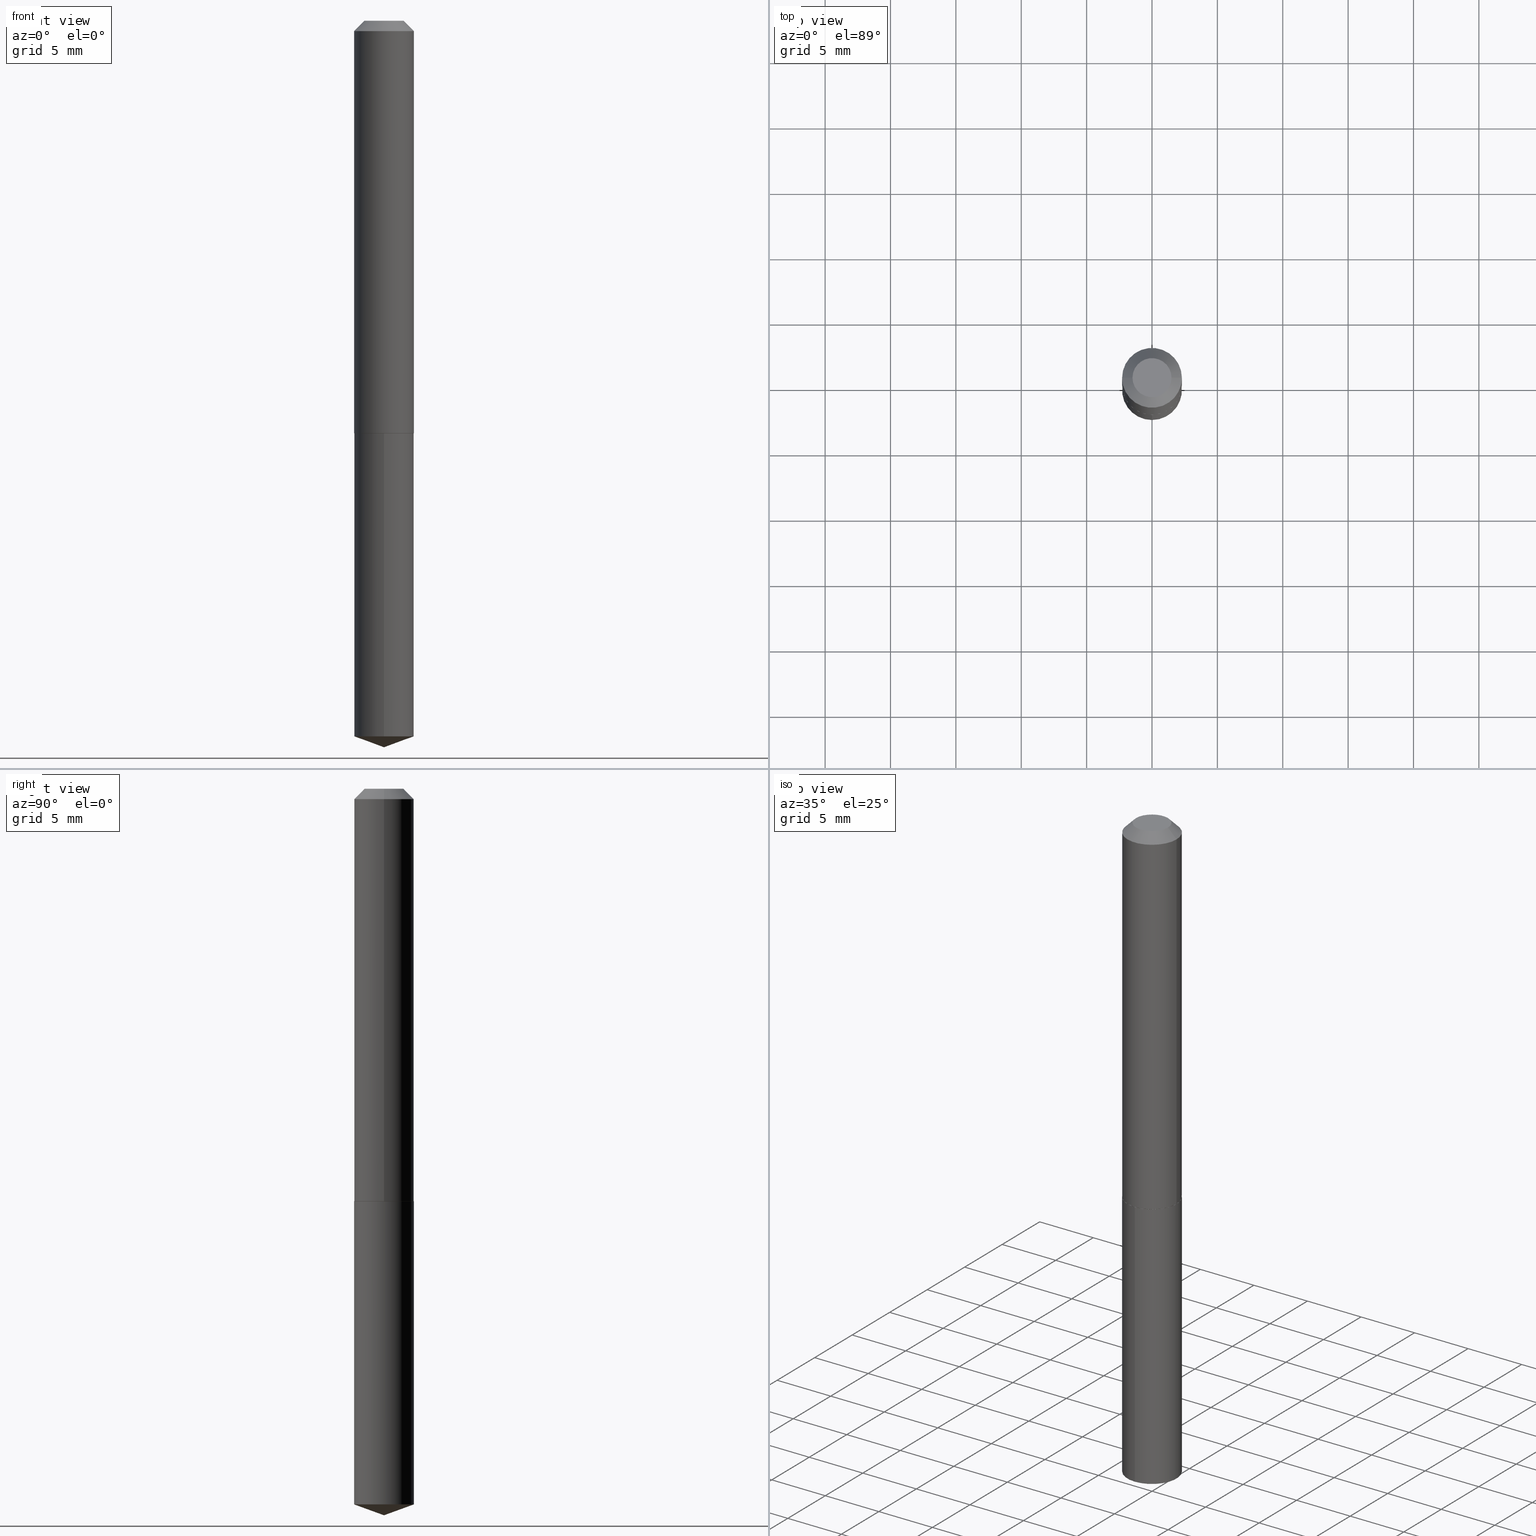
[diagram: canonical four-view strip — front | top / right | iso, engineering-drawing reading convention]
A machine part, canonical four-view strip (front | top / right | iso — engineering-drawing reading convention). The complete STEP part file that produces these views, byte-faithful:
ISO-10303-21;
HEADER;
FILE_DESCRIPTION (( 'STEP AP203' ),
    '1' );
FILE_NAME ('56224.STEP',
    '2024-04-22T21:06:40',
    ( '' ),
    ( '' ),
    'SwSTEP 2.0',
    'SolidWorks 2023',
    '' );
FILE_SCHEMA (( 'CONFIG_CONTROL_DESIGN' ));
ENDSEC;

DATA;
#1 = FACE_OUTER_BOUND ( 'NONE', #379, .T. ) ;
#2 = CARTESIAN_POINT ( 'NONE',  ( 5.269270799631211184E-29, -7.523365874737645144E-15, -2.154742678916042209 ) ) ;
#3 = DIRECTION ( 'NONE',  ( -6.982962677686265133E-15, -1.000000000000000000, 3.035386659626959132E-15 ) ) ;
#4 = AXIS2_PLACEMENT_3D ( 'NONE', #92, #35, #220 ) ;
#5 = ORIENTED_EDGE ( 'NONE', *, *, #9, .F. ) ;
#6 = MECHANICAL_CONTEXT ( 'NONE', #123, 'mechanical' ) ;
#7 = ORIENTED_EDGE ( 'NONE', *, *, #360, .T. ) ;
#8 = EDGE_CURVE ( 'NONE', #111, #316, #281, .T. ) ;
#9 = EDGE_CURVE ( 'NONE', #254, #341, #78, .T. ) ;
#10 = VECTOR ( 'NONE', #15, 39.37007874015748143 ) ;
#11 = EDGE_LOOP ( 'NONE', ( #158, #30, #279, #344 ) ) ;
#12 = ORIENTED_EDGE ( 'NONE', *, *, #59, .T. ) ;
#13 = DATE_AND_TIME ( #228, #239 ) ;
#14 = EDGE_LOOP ( 'NONE', ( #262, #371, #256, #71 ) ) ;
#15 = DIRECTION ( 'NONE',  ( -2.445375402296307705E-29, 3.491615098528167601E-15, 1.000000000000000000 ) ) ;
#16 = CIRCLE ( 'NONE', #128, 0.08999999999999999667 ) ;
#17 = DIRECTION ( 'NONE',  ( -2.445375402296307705E-29, 3.491615098528167601E-15, 1.000000000000000000 ) ) ;
#18 = DIRECTION ( 'NONE',  ( 1.000000000000000000, -6.982962677686263555E-15, 0.000000000000000000 ) ) ;
#19 = LINE ( 'NONE', #24, #380 ) ;
#20 = AXIS2_PLACEMENT_3D ( 'NONE', #271, #367, #3 ) ;
#21 = AXIS2_PLACEMENT_3D ( 'NONE', #331, #301, #161 ) ;
#22 = DIRECTION ( 'NONE',  ( -2.445468806185136597E-29, 3.491481338843145583E-15, 1.000000000000000000 ) ) ;
#23 = APPROVAL ( #282, 'UNSPECIFIED' ) ;
#24 = CARTESIAN_POINT ( 'NONE',  ( -0.09000000000000006606, 6.394884621840906367E-16, -4.427041581229418623E-30 ) ) ;
#25 = PRODUCT ( '56224', '56224', '', ( #6 ) ) ;
#26 = CARTESIAN_POINT ( 'NONE',  ( -0.09000000000000013545, -3.696931360659096890E-15, -1.242000000000000215 ) ) ;
#27 = AXIS2_PLACEMENT_3D ( 'NONE', #352, #323, #153 ) ;
#28 = CC_DESIGN_APPROVAL ( #168, ( #237 ) ) ;
#29 = CYLINDRICAL_SURFACE ( 'NONE', #44, 0.09000000000000006606 ) ;
#30 = ORIENTED_EDGE ( 'NONE', *, *, #368, .T. ) ;
#31 = ADVANCED_FACE ( 'NONE', ( #337 ), #266, .T. ) ;
#32 = CARTESIAN_POINT ( 'NONE',  ( 3.038494991685032647E-29, -4.338165563512609129E-15, -1.242500000000000160 ) ) ;
#33 = ORIENTED_EDGE ( 'NONE', *, *, #80, .T. ) ;
#34 = EDGE_CURVE ( 'NONE', #200, #142, #222, .T. ) ;
#35 = DIRECTION ( 'NONE',  ( -2.445375402296307705E-29, 3.491615098528167601E-15, 1.000000000000000000 ) ) ;
#36 = CIRCLE ( 'NONE', #311, 0.08999999999999999667 ) ;
#37 = CARTESIAN_POINT ( 'NONE',  ( 0.08950000000000044031, -4.963140723165535017E-15, -1.242500000000000826 ) ) ;
#38 = ORIENTED_EDGE ( 'NONE', *, *, #217, .T. ) ;
#39 = ADVANCED_FACE ( 'NONE', ( #86 ), #356, .F. ) ;
#40 = DATE_AND_TIME ( #252, #179 ) ;
#41 = EDGE_LOOP ( 'NONE', ( #131, #38, #232, #137 ) ) ;
#42 = VECTOR ( 'NONE', #265, 39.37007874015748854 ) ;
#43 = ORIENTED_EDGE ( 'NONE', *, *, #120, .F. ) ;
#44 = AXIS2_PLACEMENT_3D ( 'NONE', #245, #250, #334 ) ;
#45 = SECURITY_CLASSIFICATION_LEVEL ( 'unclassified' ) ;
#46 = ORIENTED_EDGE ( 'NONE', *, *, #360, .F. ) ;
#47 = EDGE_CURVE ( 'NONE', #254, #111, #56, .T. ) ;
#48 = PERSON_AND_ORGANIZATION ( #73, #351 ) ;
#49 = EDGE_LOOP ( 'NONE', ( #260, #247, #68 ) ) ;
#50 = DIRECTION ( 'NONE',  ( -6.982962677686265133E-15, -1.000000000000000000, 3.035386659626959132E-15 ) ) ;
#51 = CLOSED_SHELL ( 'NONE', ( #53, #205, #365, #210, #227 ) ) ;
#52 = DIRECTION ( 'NONE',  ( 2.445468806185136597E-29, -3.491481338843145583E-15, -1.000000000000000000 ) ) ;
#53 = ADVANCED_FACE ( 'NONE', ( #177 ), #206, .T. ) ;
#54 = DIRECTION ( 'NONE',  ( -2.445468806185136597E-29, 3.491481338843145583E-15, 1.000000000000000000 ) ) ;
#55 = CARTESIAN_POINT ( 'NONE',  ( -0.05874999999999999667, 4.648034532334915954E-16, -1.224646799177953522E-19 ) ) ;
#56 = CIRCLE ( 'NONE', #363, 0.08999999999999999667 ) ;
#57 = CC_DESIGN_DATE_AND_TIME_ASSIGNMENT ( #13, #346, ( #272 ) ) ;
#58 = FACE_OUTER_BOUND ( 'NONE', #93, .T. ) ;
#59 = EDGE_CURVE ( 'NONE', #286, #197, #87, .T. ) ;
#60 = CARTESIAN_POINT ( 'NONE',  ( -6.284666409917110122E-16, -0.09000000000000749067, -2.154742678916041765 ) ) ;
#61 = LINE ( 'NONE', #188, #358 ) ;
#62 = CONICAL_SURFACE ( 'NONE', #27, 0.09000000000000013545, 0.7853981633966971021 ) ;
#63 = AXIS2_PLACEMENT_3D ( 'NONE', #121, #243, #157 ) ;
#64 = CARTESIAN_POINT ( 'NONE',  ( -0.09000000000000013545, -3.696931360659096890E-15, -1.242000000000000215 ) ) ;
#65 = CC_DESIGN_PERSON_AND_ORGANIZATION_ASSIGNMENT ( #173, #285, ( #272 ) ) ;
#66 = DIRECTION ( 'NONE',  ( -2.445468806185136597E-29, 3.491481338843145583E-15, 1.000000000000000000 ) ) ;
#67 = DIRECTION ( 'NONE',  ( -2.445375402296307705E-29, 3.491615098528167601E-15, 1.000000000000000000 ) ) ;
#68 = ORIENTED_EDGE ( 'NONE', *, *, #317, .F. ) ;
#69 = CC_DESIGN_APPROVAL ( #23, ( #195 ) ) ;
#70 = CARTESIAN_POINT ( 'NONE',  ( 3.037272257281940407E-29, -4.336419822843187625E-15, -1.242000000000000215 ) ) ;
#71 = ORIENTED_EDGE ( 'NONE', *, *, #342, .F. ) ;
#72 = APPROVAL_STATUS ( 'not_yet_approved' ) ;
#73 = PERSON ( 'UNSPECIFIED', 'UNSPECIFIED', 'UNSPECIFIED', ('UNSPECIFIED'), ('UNSPECIFIED'), ('UNSPECIFIED') ) ;
#74 = ORIENTED_EDGE ( 'NONE', *, *, #47, .F. ) ;
#75 = EDGE_LOOP ( 'NONE', ( #43, #382, #74 ) ) ;
#76 = ADVANCED_FACE ( 'NONE', ( #58 ), #244, .T. ) ;
#77 = PERSON_AND_ORGANIZATION ( #73, #351 ) ;
#78 = LINE ( 'NONE', #288, #10 ) ;
#79 = DIRECTION ( 'NONE',  ( -1.000000000000000000, 6.982962677686265922E-15, -4.876176775795935793E-29 ) ) ;
#80 = EDGE_CURVE ( 'NONE', #316, #341, #330, .T. ) ;
#81 = DIRECTION ( 'NONE',  ( -2.445375402296307705E-29, 3.491615098528167601E-15, 1.000000000000000000 ) ) ;
#82 = LOCAL_TIME ( 17, 6, 40.00000000000000000, #372 ) ;
#83 = DIRECTION ( 'NONE',  ( -6.982962677686265133E-15, -1.000000000000000000, 3.035386659626959132E-15 ) ) ;
#84 = COORDINATED_UNIVERSAL_TIME_OFFSET ( 5, 0, .BEHIND. ) ;
#85 = DIRECTION ( 'NONE',  ( 2.438088387897960049E-29, -3.491481338843145188E-15, -1.000000000000000000 ) ) ;
#86 = FACE_OUTER_BOUND ( 'NONE', #277, .T. ) ;
#87 = CIRCLE ( 'NONE', #135, 0.09000000000000013545 ) ;
#88 = APPROVAL_PERSON_ORGANIZATION ( #306, #168, #136 ) ;
#89 = DIRECTION ( 'NONE',  ( 1.000000000000000000, -6.982962677686266711E-15, 0.000000000000000000 ) ) ;
#90 = PLANE ( 'NONE',  #94 ) ;
#91 = ORIENTED_EDGE ( 'NONE', *, *, #151, .F. ) ;
#92 = CARTESIAN_POINT ( 'NONE',  ( -9.092524739079486251E-28, 1.298274195277549427E-13, 37.18257874015748143 ) ) ;
#93 = EDGE_LOOP ( 'NONE', ( #46, #175, #258, #347 ) ) ;
#94 = AXIS2_PLACEMENT_3D ( 'NONE', #362, #219, #328 ) ;
#95 = DIRECTION ( 'NONE',  ( -6.982962677686265133E-15, -1.000000000000000000, 3.035386659626959132E-15 ) ) ;
#96 = FACE_OUTER_BOUND ( 'NONE', #229, .T. ) ;
#97 = CC_DESIGN_PERSON_AND_ORGANIZATION_ASSIGNMENT ( #48, #132, ( #25 ) ) ;
#98 = DIRECTION ( 'NONE',  ( 1.000000000000000000, 0.000000000000000000, 0.000000000000000000 ) ) ;
#99 = EDGE_CURVE ( 'NONE', #200, #134, #292, .T. ) ;
#100 = VECTOR ( 'NONE', #236, 39.37007874015748143 ) ;
#101 = COORDINATED_UNIVERSAL_TIME_OFFSET ( 5, 0, .BEHIND. ) ;
#102 = APPROVAL_PERSON_ORGANIZATION ( #77, #130, #287 ) ;
#103 = ORIENTED_EDGE ( 'NONE', *, *, #178, .F. ) ;
#104 = DIRECTION ( 'NONE',  ( -6.982962677686265133E-15, -1.000000000000000000, 3.035386659626959132E-15 ) ) ;
#105 = VERTEX_POINT ( 'NONE', #112 ) ;
#106 = PERSON_AND_ORGANIZATION ( #73, #351 ) ;
#107 = VERTEX_POINT ( 'NONE', #263 ) ;
#108 = EDGE_CURVE ( 'NONE', #107, #111, #114, .T. ) ;
#109 = PERSON_AND_ORGANIZATION_ROLE ( 'creator' ) ;
#110 = AXIS2_PLACEMENT_3D ( 'NONE', #270, #81, #83 ) ;
#111 = VERTEX_POINT ( 'NONE', #349 ) ;
#112 = CARTESIAN_POINT ( 'NONE',  ( -0.08950000000000044031, -3.699580587833207302E-15, -1.242500000000000826 ) ) ;
#113 = EDGE_CURVE ( 'NONE', #197, #286, #122, .T. ) ;
#114 = LINE ( 'NONE', #116, #100 ) ;
#115 = MANIFOLD_SOLID_BREP ( 'Body-Move/Copy2[2]', #184 ) ;
#116 = CARTESIAN_POINT ( 'NONE',  ( 5.349492836505911739E-29, -7.637575635213086858E-15, -2.187500000000000000 ) ) ;
#117 = LOCAL_TIME ( 17, 6, 40.00000000000000000, #280 ) ;
#118 = CARTESIAN_POINT ( 'NONE',  ( 3.038494991685032647E-29, -4.338165563512609129E-15, -1.242500000000000160 ) ) ;
#119 = DIRECTION ( 'NONE',  ( -2.445468806185136597E-29, 3.491481338843145583E-15, 1.000000000000000000 ) ) ;
#120 = EDGE_CURVE ( 'NONE', #107, #254, #147, .T. ) ;
#121 = CARTESIAN_POINT ( 'NONE',  ( 7.642090019328602662E-31, -1.091087918388490267E-16, -0.03125000000000020817 ) ) ;
#122 = CIRCLE ( 'NONE', #169, 0.09000000000000013545 ) ;
#123 = APPLICATION_CONTEXT ( 'configuration controlled 3d designs of mechanical parts and assemblies' ) ;
#124 = DIRECTION ( 'NONE',  ( -0.7071067811860163310, 7.493145998868434073E-15, 0.7071067811870787034 ) ) ;
#125 = ADVANCED_FACE ( 'NONE', ( #240 ), #62, .T. ) ;
#126 = FACE_OUTER_BOUND ( 'NONE', #14, .T. ) ;
#127 = DIRECTION ( 'NONE',  ( -2.445375402296307705E-29, 3.491615098528167601E-15, 1.000000000000000000 ) ) ;
#128 = AXIS2_PLACEMENT_3D ( 'NONE', #2, #127, #95 ) ;
#129 = CARTESIAN_POINT ( 'NONE',  ( 3.038494991685032647E-29, -4.338165563512609129E-15, -1.242500000000000160 ) ) ;
#130 = APPROVAL ( #291, 'UNSPECIFIED' ) ;
#131 = ORIENTED_EDGE ( 'NONE', *, *, #284, .T. ) ;
#132 = PERSON_AND_ORGANIZATION_ROLE ( 'design_owner' ) ;
#133 = CALENDAR_DATE ( 2024, 22, 4 ) ;
#134 = VERTEX_POINT ( 'NONE', #296 ) ;
#135 = AXIS2_PLACEMENT_3D ( 'NONE', #348, #320, #214 ) ;
#136 = APPROVAL_ROLE ( '' ) ;
#137 = ORIENTED_EDGE ( 'NONE', *, *, #198, .F. ) ;
#138 = CC_DESIGN_PERSON_AND_ORGANIZATION_ASSIGNMENT ( #166, #370, ( #237 ) ) ;
#139 = DIRECTION ( 'NONE',  ( 0.000000000000000000, 0.000000000000000000, 1.000000000000000000 ) ) ;
#140 = DIRECTION ( 'NONE',  ( -2.445375402296307705E-29, 3.491615098528167601E-15, 1.000000000000000000 ) ) ;
#141 =( NAMED_UNIT ( * ) PLANE_ANGLE_UNIT ( ) SI_UNIT ( $, .RADIAN. ) );
#142 = VERTEX_POINT ( 'NONE', #211 ) ;
#143 = EDGE_LOOP ( 'NONE', ( #305, #283 ) ) ;
#144 = AXIS2_PLACEMENT_3D ( 'NONE', #364, #159, #89 ) ;
#145 = DIRECTION ( 'NONE',  ( 1.000000000000000000, -6.982962677686267499E-15, 4.876179797471253707E-29 ) ) ;
#146 = DATE_AND_TIME ( #353, #290 ) ;
#147 = LINE ( 'NONE', #387, #42 ) ;
#148 = CC_DESIGN_DATE_AND_TIME_ASSIGNMENT ( #171, #313, ( #237 ) ) ;
#149 = CARTESIAN_POINT ( 'NONE',  ( 7.642090019328602662E-31, -1.091087918388490267E-16, -0.03125000000000020817 ) ) ;
#150 = CIRCLE ( 'NONE', #21, 0.08950000000000044031 ) ;
#151 = EDGE_CURVE ( 'NONE', #142, #200, #155, .T. ) ;
#152 = DIRECTION ( 'NONE',  ( 1.000000000000000000, -6.982962677686263555E-15, 0.000000000000000000 ) ) ;
#153 = DIRECTION ( 'NONE',  ( 1.000000000000000000, -6.982962677686263555E-15, 0.000000000000000000 ) ) ;
#154 = FACE_OUTER_BOUND ( 'NONE', #143, .T. ) ;
#155 = CIRCLE ( 'NONE', #215, 0.05874999999999999667 ) ;
#156 = AXIS2_PLACEMENT_3D ( 'NONE', #259, #139, #98 ) ;
#157 = DIRECTION ( 'NONE',  ( 1.000000000000000000, -6.982962677686266711E-15, 0.000000000000000000 ) ) ;
#158 = ORIENTED_EDGE ( 'NONE', *, *, #217, .F. ) ;
#159 = DIRECTION ( 'NONE',  ( -2.445468806185136597E-29, 3.491481338843145583E-15, 1.000000000000000000 ) ) ;
#160 = CC_DESIGN_PERSON_AND_ORGANIZATION_ASSIGNMENT ( #106, #109, ( #195 ) ) ;
#161 = DIRECTION ( 'NONE',  ( 1.000000000000000000, -6.982962677686266711E-15, 0.000000000000000000 ) ) ;
#162 = AXIS2_PLACEMENT_3D ( 'NONE', #118, #17, #50 ) ;
#163 = CIRCLE ( 'NONE', #144, 0.08950000000000044031 ) ;
#164 = FACE_OUTER_BOUND ( 'NONE', #335, .T. ) ;
#165 = EDGE_LOOP ( 'NONE', ( #373, #310, #204, #5 ) ) ;
#166 = PERSON_AND_ORGANIZATION ( #73, #351 ) ;
#167 = ORIENTED_EDGE ( 'NONE', *, *, #151, .T. ) ;
#168 = APPROVAL ( #72, 'UNSPECIFIED' ) ;
#169 = AXIS2_PLACEMENT_3D ( 'NONE', #208, #293, #18 ) ;
#170 = AXIS2_PLACEMENT_3D ( 'NONE', #224, #66, #193 ) ;
#171 = DATE_AND_TIME ( #255, #117 ) ;
#172 = ORIENTED_EDGE ( 'NONE', *, *, #34, .T. ) ;
#173 = PERSON_AND_ORGANIZATION ( #73, #351 ) ;
#174 = ORIENTED_EDGE ( 'NONE', *, *, #80, .F. ) ;
#175 = ORIENTED_EDGE ( 'NONE', *, *, #34, .F. ) ;
#176 = VECTOR ( 'NONE', #140, 39.37007874015748143 ) ;
#177 = FACE_OUTER_BOUND ( 'NONE', #165, .T. ) ;
#178 = EDGE_CURVE ( 'NONE', #286, #134, #19, .T. ) ;
#179 = LOCAL_TIME ( 17, 6, 40.00000000000000000, #315 ) ;
#180 = DIRECTION ( 'NONE',  ( -6.982962677686265133E-15, -1.000000000000000000, 3.035386659626959132E-15 ) ) ;
#181 = DIRECTION ( 'NONE',  ( 1.000000000000000000, -6.982962677686267499E-15, 4.876179797471253707E-29 ) ) ;
#182 = EDGE_CURVE ( 'NONE', #134, #314, #36, .T. ) ;
#183 = CARTESIAN_POINT ( 'NONE',  ( 2.994835545909338206E-48, -4.275831445896990567E-34, -1.224646799147357958E-19 ) ) ;
#184 = CLOSED_SHELL ( 'NONE', ( #329, #312, #125, #355, #31, #264, #76, #39 ) ) ;
#185 = CARTESIAN_POINT ( 'NONE',  ( -0.08999999999999999667, 5.193578491529149625E-16, -0.03125000000000020817 ) ) ;
#186 = CYLINDRICAL_SURFACE ( 'NONE', #170, 0.09000000000000006606 ) ;
#187 = DESIGN_CONTEXT ( 'detailed design', #378, 'design' ) ;
#188 = CARTESIAN_POINT ( 'NONE',  ( 0.08999999999999999667, -7.265536116382867874E-16, -0.03125000000000020817 ) ) ;
#189 = EDGE_LOOP ( 'NONE', ( #103, #12, #234, #339 ) ) ;
#190 = CIRCLE ( 'NONE', #63, 0.08999999999999999667 ) ;
#191 = CARTESIAN_POINT ( 'NONE',  ( -6.284666409917335934E-16, -0.09000000000000432654, -1.242499999999999938 ) ) ;
#192 = DIRECTION ( 'NONE',  ( -2.445468806185136877E-29, 3.491481338843145188E-15, 1.000000000000000000 ) ) ;
#193 = DIRECTION ( 'NONE',  ( 1.000000000000000000, -6.982962677686266711E-15, 4.876176775795935793E-29 ) ) ;
#194 = AXIS2_PLACEMENT_3D ( 'NONE', #183, #384, #145 ) ;
#195 = PRODUCT_DEFINITION_FORMATION_WITH_SPECIFIED_SOURCE ( 'ANY', '', #25, .NOT_KNOWN. ) ;
#196 = ORIENTED_EDGE ( 'NONE', *, *, #8, .F. ) ;
#197 = VERTEX_POINT ( 'NONE', #269 ) ;
#198 = EDGE_CURVE ( 'NONE', #302, #197, #386, .T. ) ;
#199 = APPROVAL_DATE_TIME ( #40, #168 ) ;
#200 = VERTEX_POINT ( 'NONE', #55 ) ;
#201 = VECTOR ( 'NONE', #124, 39.37007874015748143 ) ;
#202 = PERSON_AND_ORGANIZATION ( #73, #351 ) ;
#203 = ORIENTED_EDGE ( 'NONE', *, *, #9, .T. ) ;
#204 = ORIENTED_EDGE ( 'NONE', *, *, #383, .F. ) ;
#205 = ADVANCED_FACE ( 'NONE', ( #242 ), #289, .T. ) ;
#206 = CYLINDRICAL_SURFACE ( 'NONE', #110, 0.08999999999999999667 ) ;
#207 = APPROVAL_DATE_TIME ( #146, #130 ) ;
#208 = CARTESIAN_POINT ( 'NONE',  ( 3.037272257281940407E-29, -4.336419822843187625E-15, -1.242000000000000215 ) ) ;
#209 = DIMENSIONAL_EXPONENTS ( 1.000000000000000000, 0.000000000000000000, 0.000000000000000000, 0.000000000000000000, 0.000000000000000000, 0.000000000000000000, 0.000000000000000000 ) ;
#210 = ADVANCED_FACE ( 'NONE', ( #164 ), #276, .T. ) ;
#211 = CARTESIAN_POINT ( 'NONE',  ( 0.05874999999999999667, -5.648039345036820564E-16, -1.224646799113270924E-19 ) ) ;
#212 = SHAPE_DEFINITION_REPRESENTATION ( #273, #308 ) ;
#213 = DIRECTION ( 'NONE',  ( -0.7071067811865451302, 2.468850131082231817E-15, -0.7071067811865499042 ) ) ;
#214 = DIRECTION ( 'NONE',  ( 1.000000000000000000, -6.982962677686263555E-15, 0.000000000000000000 ) ) ;
#215 = AXIS2_PLACEMENT_3D ( 'NONE', #321, #54, #181 ) ;
#216 = CC_DESIGN_SECURITY_CLASSIFICATION ( #272, ( #195 ) ) ;
#217 = EDGE_CURVE ( 'NONE', #105, #286, #333, .T. ) ;
#218 = DIRECTION ( 'NONE',  ( 2.445468806185136597E-29, -3.491481338843145583E-15, -1.000000000000000000 ) ) ;
#219 = DIRECTION ( 'NONE',  ( -2.438088387897960049E-29, 3.491481338843145188E-15, 1.000000000000000000 ) ) ;
#220 = DIRECTION ( 'NONE',  ( -6.982962677686267499E-15, -1.000000000000000000, 3.475157955500694970E-15 ) ) ;
#221 = CC_DESIGN_PERSON_AND_ORGANIZATION_ASSIGNMENT ( #231, #343, ( #195 ) ) ;
#222 = CIRCLE ( 'NONE', #194, 0.05874999999999999667 ) ;
#223 = DIRECTION ( 'NONE',  ( -1.000000000000000000, 6.982962677686266711E-15, 0.000000000000000000 ) ) ;
#224 = CARTESIAN_POINT ( 'NONE',  ( 0.000000000000000000, 0.000000000000000000, 0.000000000000000000 ) ) ;
#225 = ORIENTED_EDGE ( 'NONE', *, *, #317, .T. ) ;
#226 = AXIS2_PLACEMENT_3D ( 'NONE', #246, #218, #223 ) ;
#227 = ADVANCED_FACE ( 'NONE', ( #96 ), #388, .F. ) ;
#228 = CALENDAR_DATE ( 2024, 22, 4 ) ;
#229 = EDGE_LOOP ( 'NONE', ( #307, #33 ) ) ;
#230 = CARTESIAN_POINT ( 'NONE',  ( 6.394884621841203175E-16, 0.08999999999999565292, -1.242500000000000382 ) ) ;
#231 = PERSON_AND_ORGANIZATION ( #73, #351 ) ;
#232 = ORIENTED_EDGE ( 'NONE', *, *, #113, .F. ) ;
#233 = AXIS2_PLACEMENT_3D ( 'NONE', #129, #369, #104 ) ;
#234 = ORIENTED_EDGE ( 'NONE', *, *, #342, .T. ) ;
#235 = DIRECTION ( 'NONE',  ( -2.445468806185136877E-29, 3.491481338843145188E-15, 1.000000000000000000 ) ) ;
#236 = DIRECTION ( 'NONE',  ( 6.676917655467975229E-15, 0.9396926207859106484, 0.3420201433256624401 ) ) ;
#237 = PRODUCT_DEFINITION ( 'UNKNOWN', '', #195, #187 ) ;
#238 = AXIS2_PLACEMENT_3D ( 'NONE', #385, #85, #79 ) ;
#239 = LOCAL_TIME ( 17, 6, 40.00000000000000000, #101 ) ;
#240 = FACE_OUTER_BOUND ( 'NONE', #41, .T. ) ;
#241 = CARTESIAN_POINT ( 'NONE',  ( 0.09000000000000013545, -4.964886463834952576E-15, -1.242000000000000215 ) ) ;
#242 = FACE_OUTER_BOUND ( 'NONE', #75, .T. ) ;
#243 = DIRECTION ( 'NONE',  ( -2.445468806185136597E-29, 3.491481338843145583E-15, 1.000000000000000000 ) ) ;
#244 = CONICAL_SURFACE ( 'NONE', #350, 0.08999999999999999667, 0.7853981633974449483 ) ;
#245 = CARTESIAN_POINT ( 'NONE',  ( 0.000000000000000000, 0.000000000000000000, 0.000000000000000000 ) ) ;
#246 = CARTESIAN_POINT ( 'NONE',  ( 7.642090019328602662E-31, -1.091087918388490267E-16, -0.03125000000000020817 ) ) ;
#247 = ORIENTED_EDGE ( 'NONE', *, *, #120, .T. ) ;
#248 = DIRECTION ( 'NONE',  ( 2.445375402296307425E-29, -3.491615098528167601E-15, -1.000000000000000000 ) ) ;
#249 =( GEOMETRIC_REPRESENTATION_CONTEXT ( 3 ) GLOBAL_UNCERTAINTY_ASSIGNED_CONTEXT ( ( #327 ) ) GLOBAL_UNIT_ASSIGNED_CONTEXT ( ( #336, #141, #253 ) ) REPRESENTATION_CONTEXT ( 'NONE', 'WORKASPACE' ) );
#250 = DIRECTION ( 'NONE',  ( -2.445468806185136597E-29, 3.491481338843145583E-15, 1.000000000000000000 ) ) ;
#251 = ORIENTED_EDGE ( 'NONE', *, *, #99, .F. ) ;
#252 = CALENDAR_DATE ( 2024, 22, 4 ) ;
#253 =( NAMED_UNIT ( * ) SI_UNIT ( $, .STERADIAN. ) SOLID_ANGLE_UNIT ( ) );
#254 = VERTEX_POINT ( 'NONE', #60 ) ;
#255 = CALENDAR_DATE ( 2024, 22, 4 ) ;
#256 = ORIENTED_EDGE ( 'NONE', *, *, #300, .F. ) ;
#257 = APPROVAL_ROLE ( '' ) ;
#258 = ORIENTED_EDGE ( 'NONE', *, *, #99, .T. ) ;
#259 = CARTESIAN_POINT ( 'NONE',  ( 0.000000000000000000, 0.000000000000000000, 0.000000000000000000 ) ) ;
#260 = ORIENTED_EDGE ( 'NONE', *, *, #108, .F. ) ;
#261 = VECTOR ( 'NONE', #354, 39.37007874015748143 ) ;
#262 = ORIENTED_EDGE ( 'NONE', *, *, #113, .T. ) ;
#263 = CARTESIAN_POINT ( 'NONE',  ( 5.349258692523174155E-29, -7.637908028030366429E-15, -2.187500000000000000 ) ) ;
#264 = ADVANCED_FACE ( 'NONE', ( #304 ), #29, .T. ) ;
#265 = DIRECTION ( 'NONE',  ( -6.561838499445207162E-15, -0.9396926207859082059, 0.3420201433256689350 ) ) ;
#266 = CONICAL_SURFACE ( 'NONE', #357, 0.09000000000000013545, 0.7853981633966971021 ) ;
#267 = VECTOR ( 'NONE', #192, 39.37007874015748143 ) ;
#268 = DIRECTION ( 'NONE',  ( 1.000000000000000000, -6.982962677686266711E-15, 0.000000000000000000 ) ) ;
#269 = CARTESIAN_POINT ( 'NONE',  ( 0.09000000000000013545, -4.964886463834952576E-15, -1.242000000000000215 ) ) ;
#270 = CARTESIAN_POINT ( 'NONE',  ( 3.038494991685032647E-29, -4.338165563512609129E-15, -1.242500000000000160 ) ) ;
#271 = CARTESIAN_POINT ( 'NONE',  ( 3.038494991685032647E-29, -4.338165563512609129E-15, -1.242500000000000160 ) ) ;
#272 = SECURITY_CLASSIFICATION ( '', '', #45 ) ;
#273 = PRODUCT_DEFINITION_SHAPE ( 'NONE', 'NONE',  #237 ) ;
#274 = CARTESIAN_POINT ( 'NONE',  ( 0.08999999999999999667, -7.375754328306130652E-16, -0.03125000000000020817 ) ) ;
#275 = DIRECTION ( 'NONE',  ( 6.982962677686265922E-15, 1.000000000000000000, -3.491615098528167601E-15 ) ) ;
#276 = CYLINDRICAL_SURFACE ( 'NONE', #20, 0.08999999999999999667 ) ;
#277 = EDGE_LOOP ( 'NONE', ( #172, #167 ) ) ;
#278 =( LENGTH_UNIT ( ) NAMED_UNIT ( * ) SI_UNIT ( $, .METRE. ) );
#279 = ORIENTED_EDGE ( 'NONE', *, *, #198, .T. ) ;
#280 = COORDINATED_UNIVERSAL_TIME_OFFSET ( 5, 0, .BEHIND. ) ;
#281 = LINE ( 'NONE', #230, #176 ) ;
#282 = APPROVAL_STATUS ( 'not_yet_approved' ) ;
#283 = ORIENTED_EDGE ( 'NONE', *, *, #368, .F. ) ;
#284 = EDGE_CURVE ( 'NONE', #302, #105, #163, .T. ) ;
#285 = PERSON_AND_ORGANIZATION_ROLE ( 'classification_officer' ) ;
#286 = VERTEX_POINT ( 'NONE', #64 ) ;
#287 = APPROVAL_ROLE ( '' ) ;
#288 = CARTESIAN_POINT ( 'NONE',  ( -6.284666409917335934E-16, -0.09000000000000432654, -1.242499999999999938 ) ) ;
#289 = CONICAL_SURFACE ( 'NONE', #299, 108.1684023407342465, 1.221730476396033938 ) ;
#290 = LOCAL_TIME ( 17, 6, 40.00000000000000000, #84 ) ;
#291 = APPROVAL_STATUS ( 'not_yet_approved' ) ;
#292 = LINE ( 'NONE', #185, #389 ) ;
#293 = DIRECTION ( 'NONE',  ( -2.445468806185136597E-29, 3.491481338843145583E-15, 1.000000000000000000 ) ) ;
#294 = DIRECTION ( 'NONE',  ( -2.445375402296307705E-29, 3.491615098528167601E-15, 1.000000000000000000 ) ) ;
#295 = CARTESIAN_POINT ( 'NONE',  ( 5.269270799631211184E-29, -7.523365874737645144E-15, -2.154742678916042209 ) ) ;
#296 = CARTESIAN_POINT ( 'NONE',  ( -0.08999999999999999667, -1.583275845156927233E-15, -0.03125000000000020817 ) ) ;
#297 = LINE ( 'NONE', #326, #267 ) ;
#298 = FACE_OUTER_BOUND ( 'NONE', #49, .T. ) ;
#299 = AXIS2_PLACEMENT_3D ( 'NONE', #361, #67, #390 ) ;
#300 = EDGE_CURVE ( 'NONE', #314, #134, #190, .T. ) ;
#301 = DIRECTION ( 'NONE',  ( -2.445468806185136597E-29, 3.491481338843145583E-15, 1.000000000000000000 ) ) ;
#302 = VERTEX_POINT ( 'NONE', #37 ) ;
#303 = DIRECTION ( 'NONE',  ( 0.7071067811865451302, -7.319954787623248157E-15, -0.7071067811865499042 ) ) ;
#304 = FACE_OUTER_BOUND ( 'NONE', #189, .T. ) ;
#305 = ORIENTED_EDGE ( 'NONE', *, *, #284, .F. ) ;
#306 = PERSON_AND_ORGANIZATION ( #73, #351 ) ;
#307 = ORIENTED_EDGE ( 'NONE', *, *, #383, .T. ) ;
#308 = ADVANCED_BREP_SHAPE_REPRESENTATION ( '56224', ( #374, #115, #156 ), #249 ) ;
#309 = APPLICATION_PROTOCOL_DEFINITION ( 'international standard', 'config_control_design', 1994, #378 ) ;
#310 = ORIENTED_EDGE ( 'NONE', *, *, #8, .T. ) ;
#311 = AXIS2_PLACEMENT_3D ( 'NONE', #149, #22, #268 ) ;
#312 = ADVANCED_FACE ( 'NONE', ( #126 ), #186, .T. ) ;
#313 = DATE_TIME_ROLE ( 'creation_date' ) ;
#314 = VERTEX_POINT ( 'NONE', #274 ) ;
#315 = COORDINATED_UNIVERSAL_TIME_OFFSET ( 5, 0, .BEHIND. ) ;
#316 = VERTEX_POINT ( 'NONE', #359 ) ;
#317 = EDGE_CURVE ( 'NONE', #111, #254, #16, .T. ) ;
#318 = CARTESIAN_POINT ( 'NONE',  ( 7.642090019328602662E-31, -1.091087918388490267E-16, -0.03125000000000020817 ) ) ;
#319 = APPROVAL_PERSON_ORGANIZATION ( #202, #23, #257 ) ;
#320 = DIRECTION ( 'NONE',  ( -2.445468806185136597E-29, 3.491481338843145583E-15, 1.000000000000000000 ) ) ;
#321 = CARTESIAN_POINT ( 'NONE',  ( 2.994835545909338206E-48, -4.275831445896990567E-34, -1.224646799147357958E-19 ) ) ;
#322 = PRODUCT_RELATED_PRODUCT_CATEGORY ( 'detail', '', ( #25 ) ) ;
#323 = DIRECTION ( 'NONE',  ( -2.445468806185136597E-29, 3.491481338843145583E-15, 1.000000000000000000 ) ) ;
#324 = AXIS2_PLACEMENT_3D ( 'NONE', #32, #248, #275 ) ;
#325 = DIRECTION ( 'NONE',  ( -1.000000000000000000, 6.982962677686266711E-15, 0.000000000000000000 ) ) ;
#326 = CARTESIAN_POINT ( 'NONE',  ( 0.09000000000000006606, -6.284666409917644575E-16, 4.388559098216345437E-30 ) ) ;
#327 = UNCERTAINTY_MEASURE_WITH_UNIT (LENGTH_MEASURE( 1.000000000000000082E-05 ), #336, 'distance_accuracy_value', 'NONE');
#328 = DIRECTION ( 'NONE',  ( 1.000000000000000000, -6.982962677686265922E-15, 4.876176775795935793E-29 ) ) ;
#329 = ADVANCED_FACE ( 'NONE', ( #1 ), #332, .T. ) ;
#330 = CIRCLE ( 'NONE', #162, 0.08999999999999999667 ) ;
#331 = CARTESIAN_POINT ( 'NONE',  ( 3.038494991685034329E-29, -4.338165563512611496E-15, -1.242500000000000826 ) ) ;
#332 = CONICAL_SURFACE ( 'NONE', #226, 0.08999999999999999667, 0.7853981633974449483 ) ;
#333 = LINE ( 'NONE', #26, #201 ) ;
#334 = DIRECTION ( 'NONE',  ( 1.000000000000000000, -6.982962677686266711E-15, 4.876176775795935793E-29 ) ) ;
#335 = EDGE_LOOP ( 'NONE', ( #196, #225, #203, #174 ) ) ;
#336 =( CONVERSION_BASED_UNIT ( 'INCH', #340 ) LENGTH_UNIT ( ) NAMED_UNIT ( #209 ) );
#337 = FACE_OUTER_BOUND ( 'NONE', #11, .T. ) ;
#338 = APPROVAL_DATE_TIME ( #375, #23 ) ;
#339 = ORIENTED_EDGE ( 'NONE', *, *, #182, .F. ) ;
#340 = LENGTH_MEASURE_WITH_UNIT ( LENGTH_MEASURE( 0.02539999999999999897 ), #278 );
#341 = VERTEX_POINT ( 'NONE', #191 ) ;
#342 = EDGE_CURVE ( 'NONE', #197, #314, #297, .T. ) ;
#343 = PERSON_AND_ORGANIZATION_ROLE ( 'design_supplier' ) ;
#344 = ORIENTED_EDGE ( 'NONE', *, *, #59, .F. ) ;
#345 = CC_DESIGN_APPROVAL ( #130, ( #272 ) ) ;
#346 = DATE_TIME_ROLE ( 'classification_date' ) ;
#347 = ORIENTED_EDGE ( 'NONE', *, *, #182, .T. ) ;
#348 = CARTESIAN_POINT ( 'NONE',  ( 3.037272257281940407E-29, -4.336419822843187625E-15, -1.242000000000000215 ) ) ;
#349 = CARTESIAN_POINT ( 'NONE',  ( 6.394884621841425043E-16, 0.08999999999999243327, -2.154742678916042653 ) ) ;
#350 = AXIS2_PLACEMENT_3D ( 'NONE', #318, #52, #325 ) ;
#351 = ORGANIZATION ( 'UNSPECIFIED', 'UNSPECIFIED', '' ) ;
#352 = CARTESIAN_POINT ( 'NONE',  ( 3.037272257281940407E-29, -4.336419822843187625E-15, -1.242000000000000215 ) ) ;
#353 = CALENDAR_DATE ( 2024, 22, 4 ) ;
#354 = DIRECTION ( 'NONE',  ( 0.7071067811860163310, -2.468850131076692830E-15, 0.7071067811870787034 ) ) ;
#355 = ADVANCED_FACE ( 'NONE', ( #154 ), #90, .F. ) ;
#356 = PLANE ( 'NONE',  #238 ) ;
#357 = AXIS2_PLACEMENT_3D ( 'NONE', #70, #119, #152 ) ;
#358 = VECTOR ( 'NONE', #303, 39.37007874015748143 ) ;
#359 = CARTESIAN_POINT ( 'NONE',  ( 6.394884621841428987E-16, 0.08999999999999565292, -1.242500000000000382 ) ) ;
#360 = EDGE_CURVE ( 'NONE', #142, #314, #61, .T. ) ;
#361 = CARTESIAN_POINT ( 'NONE',  ( -9.092524739079486251E-28, 1.298274195277549427E-13, 37.18257874015748143 ) ) ;
#362 = CARTESIAN_POINT ( 'NONE',  ( 3.901801557374897220E-30, -8.130703141309081926E-15, -1.242500000000000382 ) ) ;
#363 = AXIS2_PLACEMENT_3D ( 'NONE', #295, #294, #180 ) ;
#364 = CARTESIAN_POINT ( 'NONE',  ( 3.038494991685034329E-29, -4.338165563512611496E-15, -1.242500000000000826 ) ) ;
#365 = ADVANCED_FACE ( 'NONE', ( #298 ), #366, .T. ) ;
#366 = CONICAL_SURFACE ( 'NONE', #4, 108.1684023407342465, 1.221730476396033938 ) ;
#367 = DIRECTION ( 'NONE',  ( -2.445375402296307705E-29, 3.491615098528167601E-15, 1.000000000000000000 ) ) ;
#368 = EDGE_CURVE ( 'NONE', #105, #302, #150, .T. ) ;
#369 = DIRECTION ( 'NONE',  ( -2.445375402296307705E-29, 3.491615098528167601E-15, 1.000000000000000000 ) ) ;
#370 = PERSON_AND_ORGANIZATION_ROLE ( 'creator' ) ;
#371 = ORIENTED_EDGE ( 'NONE', *, *, #178, .T. ) ;
#372 = COORDINATED_UNIVERSAL_TIME_OFFSET ( 5, 0, .BEHIND. ) ;
#373 = ORIENTED_EDGE ( 'NONE', *, *, #47, .T. ) ;
#374 = MANIFOLD_SOLID_BREP ( 'Body-Move/Copy2[1]', #51 ) ;
#375 = DATE_AND_TIME ( #133, #82 ) ;
#376 = ORIENTED_EDGE ( 'NONE', *, *, #300, .T. ) ;
#377 = APPLICATION_PROTOCOL_DEFINITION ( 'international standard', 'config_control_design', 1994, #123 ) ;
#378 = APPLICATION_CONTEXT ( 'configuration controlled 3d designs of mechanical parts and assemblies' ) ;
#379 = EDGE_LOOP ( 'NONE', ( #91, #7, #376, #251 ) ) ;
#380 = VECTOR ( 'NONE', #235, 39.37007874015748143 ) ;
#381 = CIRCLE ( 'NONE', #233, 0.08999999999999999667 ) ;
#382 = ORIENTED_EDGE ( 'NONE', *, *, #108, .T. ) ;
#383 = EDGE_CURVE ( 'NONE', #341, #316, #381, .T. ) ;
#384 = DIRECTION ( 'NONE',  ( -2.445468806185136597E-29, 3.491481338843145583E-15, 1.000000000000000000 ) ) ;
#385 = CARTESIAN_POINT ( 'NONE',  ( 1.497417772954669103E-48, -2.137915722948495283E-34, -6.123233995736789792E-20 ) ) ;
#386 = LINE ( 'NONE', #241, #261 ) ;
#387 = CARTESIAN_POINT ( 'NONE',  ( 5.349258692523174155E-29, -7.637908028030366429E-15, -2.187500000000000000 ) ) ;
#388 = PLANE ( 'NONE',  #324 ) ;
#389 = VECTOR ( 'NONE', #213, 39.37007874015748143 ) ;
#390 = DIRECTION ( 'NONE',  ( -6.982962677686267499E-15, -1.000000000000000000, 3.475157955500694970E-15 ) ) ;
ENDSEC;
END-ISO-10303-21;
